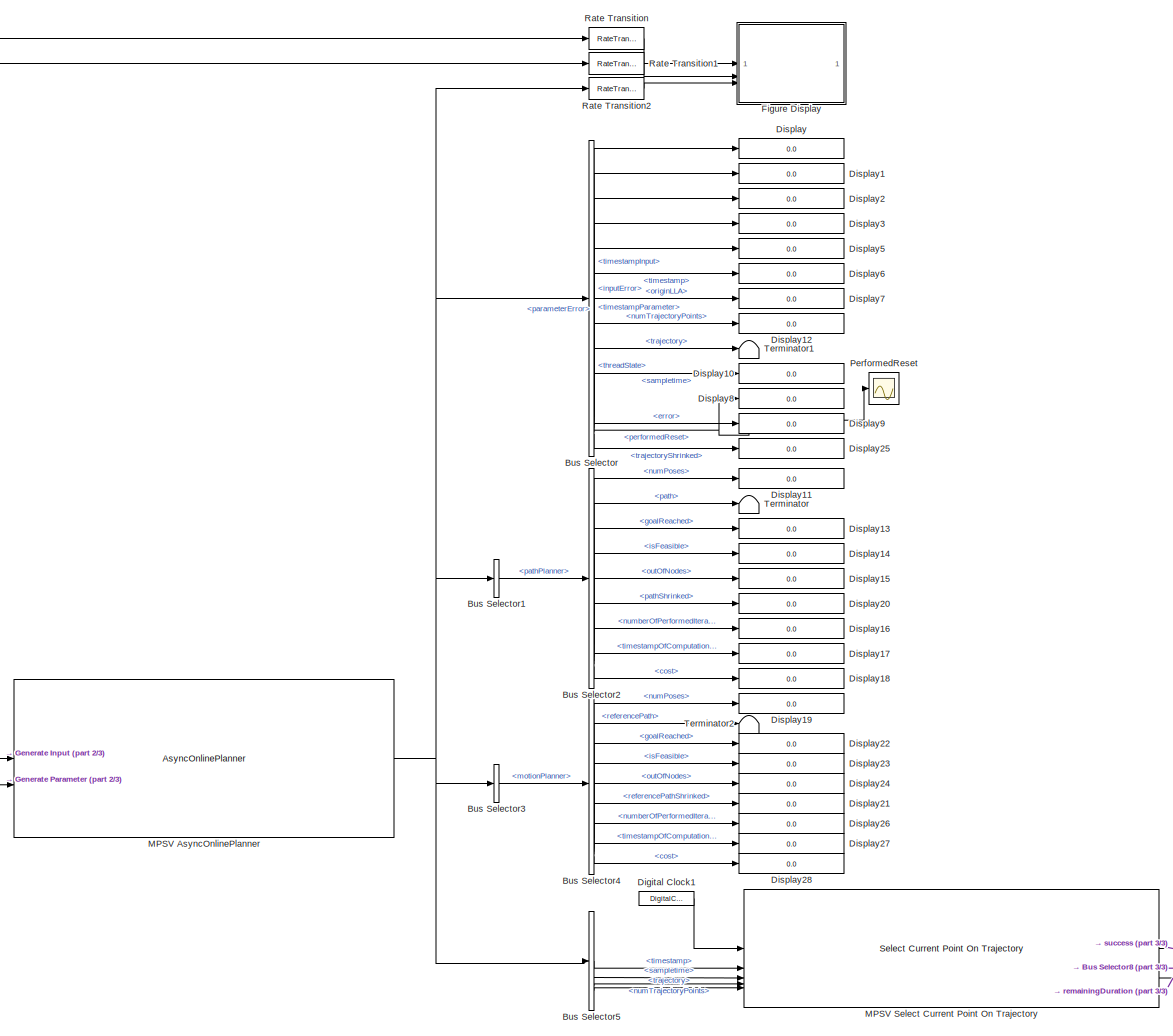
[diagram: root canvas - part 1/3, center side, full height]
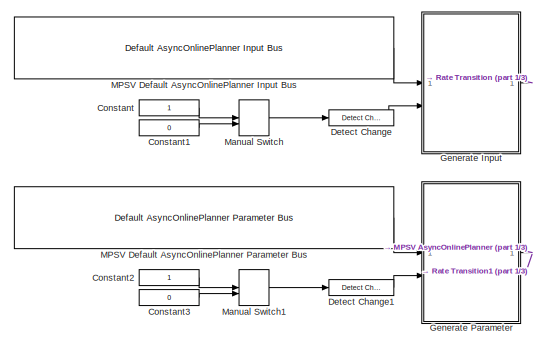
[diagram: root canvas - part 2/3, bottom left region]
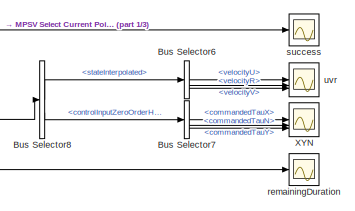
[diagram: root canvas - part 3/3, bottom right region]
MODEL slx_ed2f8e95f9f7
KIND model
CONFIG AbsTol = auto
CONFIG EnableMultiTasking = on
CONFIG FixedStep = 0.01
CONFIG MaxStep = auto
CONFIG MinStep = auto
CONFIG RelTol = 1e-3
CONFIG SampleTimeConstraint = Unconstrained
CONFIG SolverName = FixedStepAuto
CONFIG StartTime = 0.0
CONFIG StopTime = inf
BLOCK [BusSelector] Bus Selector
  OutputSignals = timestampInput,timestampParameter,inputError,parameterError,threadState,timestamp,originLLA,numTrajectoryPoints,trajectory,sampletime,performedReset,error,trajectoryShrinked
BLOCK [BusSelector] Bus Selector1
  OutputSignals = pathPlanner
BLOCK [BusSelector] Bus Selector2
  OutputSignals = numPoses,path,goalReached,isFeasible,outOfNodes,pathShrinked,numberOfPerformedIterations,timestampOfComputationUTC,cost
BLOCK [BusSelector] Bus Selector3
  OutputSignals = motionPlanner
BLOCK [BusSelector] Bus Selector4
  OutputSignals = numPoses,referencePath,goalReached,isFeasible,outOfNodes,referencePathShrinked,numberOfPerformedIterations,timestampOfComputationUTC,cost
BLOCK [BusSelector] Bus Selector5
  OutputSignals = timestamp,sampletime,numTrajectoryPoints,trajectory
BLOCK [BusSelector] Bus Selector6
  OutputSignals = velocityU,velocityV,velocityR
BLOCK [BusSelector] Bus Selector7
  OutputSignals = commandedTauX,commandedTauY,commandedTauN
BLOCK [BusSelector] Bus Selector8
  OutputSignals = stateInterpolated,controlInputZeroOrderHold
BLOCK [Constant] Constant
  OutDataTypeStr = uint8
BLOCK [Constant] Constant1
  OutDataTypeStr = uint8
  Value = 0
BLOCK [Constant] Constant2
  OutDataTypeStr = uint8
BLOCK [Constant] Constant3
  OutDataTypeStr = uint8
  Value = 0
BLOCK [Reference] Detect Change  REF=simulink/Logic and Bit
Operations/Detect
Change
  SourceBlock = simulink/Logic and Bit\nOperations/Detect\nChange
  SourceType = Detect Change
BLOCK [Reference] Detect Change1  REF=simulink/Logic and Bit
Operations/Detect
Change
  SourceBlock = simulink/Logic and Bit\nOperations/Detect\nChange
  SourceType = Detect Change
BLOCK [DigitalClock] Digital Clock1
  SampleTime = 0.01
BLOCK [Display] Display
  Decimation = 1
  Format = long
BLOCK [Display] Display1
  Decimation = 1
  Format = long
BLOCK [Display] Display10
  Decimation = 1
  Format = long
BLOCK [Display] Display11
  Decimation = 1
  Format = long
BLOCK [Display] Display12
  Decimation = 1
  Format = long
BLOCK [Display] Display13
  Decimation = 1
  Format = long
BLOCK [Display] Display14
  Decimation = 1
  Format = long
BLOCK [Display] Display15
  Decimation = 1
  Format = long
BLOCK [Display] Display16
  Decimation = 1
  Format = long
BLOCK [Display] Display17
  Decimation = 1
  Format = long
BLOCK [Display] Display18
  Decimation = 1
  Format = long
BLOCK [Display] Display19
  Decimation = 1
  Format = long
BLOCK [Display] Display2
  Decimation = 1
  Format = long
BLOCK [Display] Display20
  Decimation = 1
  Format = long
BLOCK [Display] Display21
  Decimation = 1
  Format = long
BLOCK [Display] Display22
  Decimation = 1
  Format = long
BLOCK [Display] Display23
  Decimation = 1
  Format = long
BLOCK [Display] Display24
  Decimation = 1
  Format = long
BLOCK [Display] Display25
  Decimation = 1
  Format = long
BLOCK [Display] Display26
  Decimation = 1
  Format = long
BLOCK [Display] Display27
  Decimation = 1
  Format = long
BLOCK [Display] Display28
  Decimation = 1
  Format = long
BLOCK [Display] Display3
  Decimation = 1
  Format = long
BLOCK [Display] Display5
  Decimation = 1
  Format = long
BLOCK [Display] Display6
  Decimation = 1
  Format = long
BLOCK [Display] Display7
  Decimation = 1
  Format = long
BLOCK [Display] Display8
  Decimation = 1
  Format = long
BLOCK [Display] Display9
  Decimation = 1
  Format = long
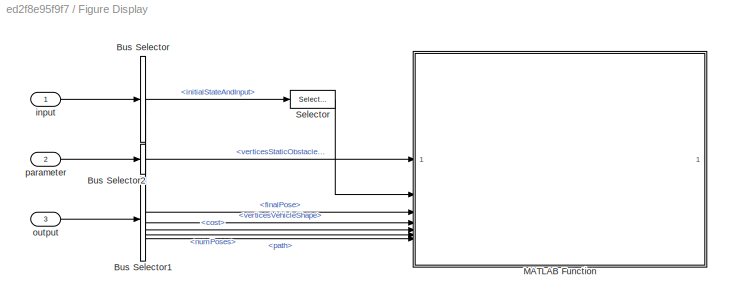
BLOCK [SubSystem] Figure Display
BLOCK [BusSelector] Figure Display/Bus Selector
  OutputSignals = verticesStaticObstacles,initialStateAndInput,finalPose
BLOCK [BusSelector] Figure Display/Bus Selector1
  OutputSignals = pathPlanner.cost,pathPlanner.numPoses,pathPlanner.path
BLOCK [BusSelector] Figure Display/Bus Selector2
  OutputSignals = sequentialPlanner.geometry.verticesVehicleShape
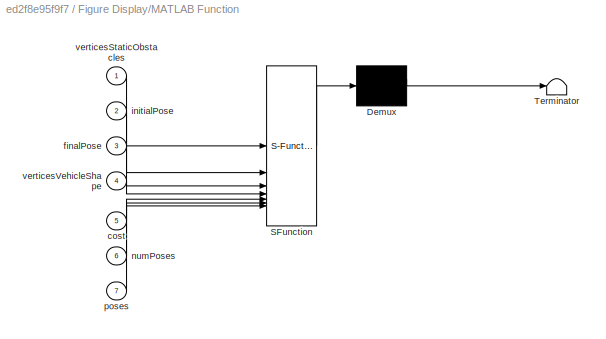
BLOCK [SubSystem] Figure Display/MATLAB Function
  ErrorFcn = Stateflow.Translate.translate
  LibrarySourceBlock = simulink/User-Defined\nFunctions/MATLAB Function
  PermitHierarchicalResolution = ExplicitOnly
  SFBlockType = MATLAB Function
  TreatAsAtomicUnit = on
BLOCK [Demux] Figure Display/MATLAB Function/ Demux 
  Outputs = 1
BLOCK [S-Function] Figure Display/MATLAB Function/ SFunction 
  EnableBusSupport = off
  FunctionName = sf_sfun
  PortCounts = [7 1]
  SFcnIsStateOwnerBlock = off
  SFunctionDeploymentMode = off
  Tag = Stateflow S-Function 2
BLOCK [Terminator] Figure Display/MATLAB Function/ Terminator 
BLOCK [Inport] Figure Display/MATLAB Function/cost
  Port = 5
BLOCK [Inport] Figure Display/MATLAB Function/finalPose
  Port = 3
BLOCK [Inport] Figure Display/MATLAB Function/initialPose
  Port = 2
BLOCK [Inport] Figure Display/MATLAB Function/numPoses
  Port = 6
BLOCK [Inport] Figure Display/MATLAB Function/poses
  Port = 7
BLOCK [Inport] Figure Display/MATLAB Function/verticesStaticObstacles
BLOCK [Inport] Figure Display/MATLAB Function/verticesVehicleShape
  Port = 4
BLOCK [Selector] Figure Display/Selector
  IndexOptions = Index vector (dialog)
  Indices = 1:3
  InputPortWidth = 12
  OutputSizes = 1
BLOCK [Inport] Figure Display/input
BLOCK [Inport] Figure Display/output
  Port = 3
BLOCK [Inport] Figure Display/parameter
  Port = 2
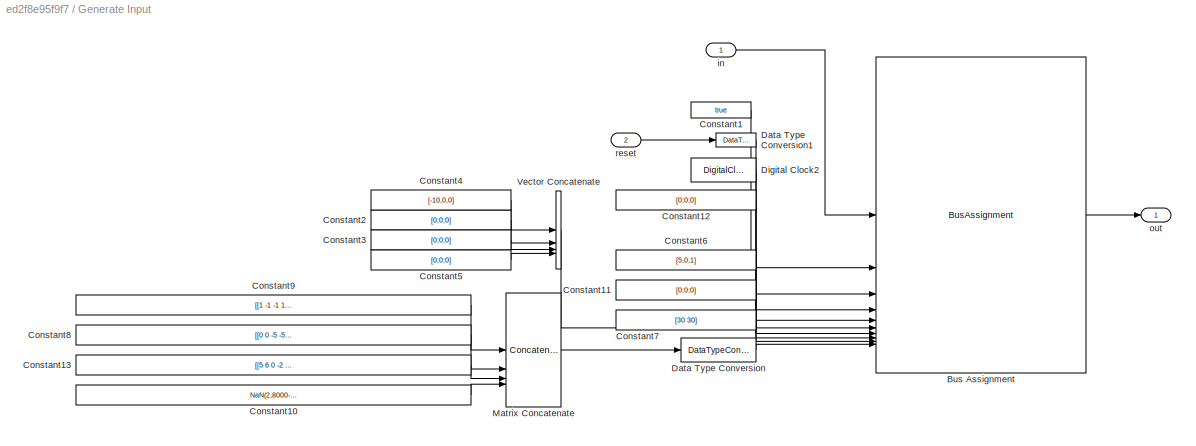
BLOCK [SubSystem] Generate Input
BLOCK [BusAssignment] Generate Input/Bus Assignment
  AssignedSignals = enable,reset,timestamp,originLLA,initialStateAndInput,finalPose,samplingBoxCenterPose,samplingBoxDimension,verticesStaticObstacles
BLOCK [Constant] Generate Input/Constant1
  OutDataTypeStr = boolean
  Value = true
BLOCK [Constant] Generate Input/Constant10
  Value = NaN(2,8000-5-5-6)
BLOCK [Constant] Generate Input/Constant11
  Value = [0;0;0]
BLOCK [Constant] Generate Input/Constant12
  Value = [0;0;0]
BLOCK [Constant] Generate Input/Constant13
  Value = [[5 6 0 -2 -1; 6 15 16 10 7], NaN(2,1)]
BLOCK [Constant] Generate Input/Constant2
  Value = [0;0;0]
BLOCK [Constant] Generate Input/Constant3
  Value = [0;0;0]
BLOCK [Constant] Generate Input/Constant4
  Value = [-10,0,0]
BLOCK [Constant] Generate Input/Constant5
  Value = [0;0;0]
BLOCK [Constant] Generate Input/Constant6
  Value = [5,0,1]
BLOCK [Constant] Generate Input/Constant7
  Value = [30 30]
BLOCK [Constant] Generate Input/Constant8
  Value = [[0 0 -5 -5; -20 -9 -7 -20], NaN(2,1)]
BLOCK [Constant] Generate Input/Constant9
  Value = [[1 -1 -1 1; 1 1 -1 -1], NaN(2,1)]
BLOCK [DataTypeConversion] Generate Input/Data Type Conversion
  OutDataTypeStr = single
  RndMeth = Floor
  SaturateOnIntegerOverflow = off
BLOCK [DataTypeConversion] Generate Input/Data Type Conversion1
  OutDataTypeStr = boolean
  RndMeth = Floor
  SaturateOnIntegerOverflow = off
BLOCK [DigitalClock] Generate Input/Digital Clock2
  SampleTime = 0.01
BLOCK [Concatenate] Generate Input/Matrix Concatenate
  ConcatenateDimension = 2
  Mode = Multidimensional array
  NumInputs = 4
BLOCK [Concatenate] Generate Input/Vector Concatenate
  NumInputs = 4
BLOCK [Inport] Generate Input/in
BLOCK [Outport] Generate Input/out
BLOCK [Inport] Generate Input/reset
  Port = 2
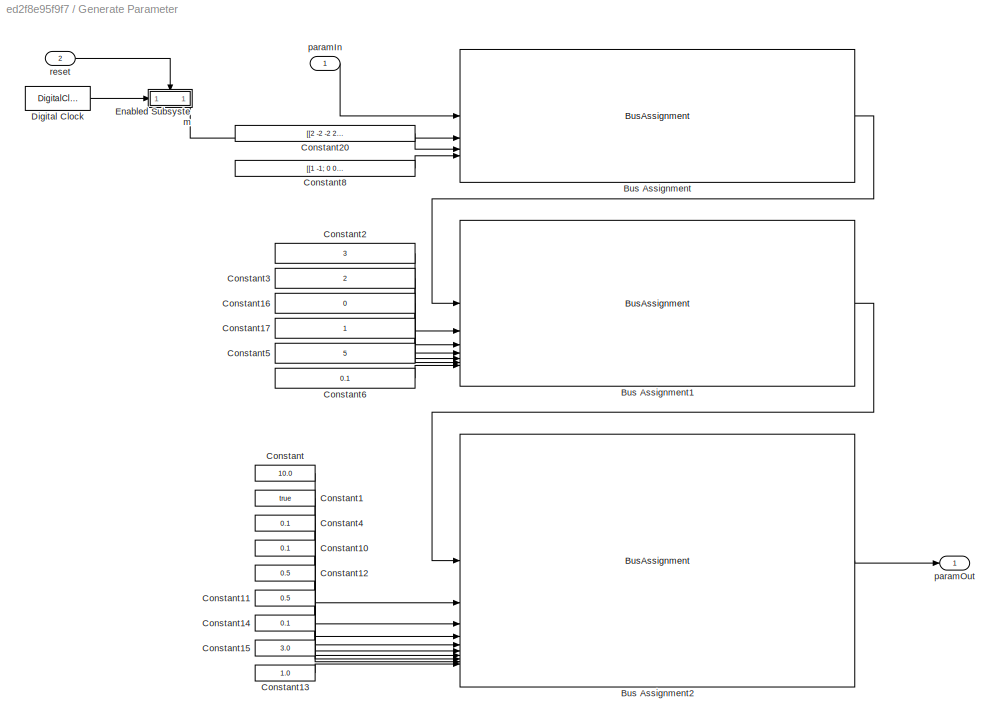
BLOCK [SubSystem] Generate Parameter
BLOCK [BusAssignment] Generate Parameter/Bus Assignment
  AssignedSignals = timestamp,sequentialPlanner.geometry.verticesVehicleShape,sequentialPlanner.geometry.skeletalPoints
BLOCK [BusAssignment] Generate Parameter/Bus Assignment1
  AssignedSignals = sequentialPlanner.metric.weightPsi,sequentialPlanner.metric.weightSway,sequentialPlanner.metric.weightReverseScale,sequentialPlanner.metric.weightReverseDecay,sequentialPlanner.costMap.distanceScale,sequentialPlanner.costMap.distanceDecay
BLOCK [BusAssignment] Generate Parameter/Bus Assignment2
  AssignedSignals = timeoutInput,onlinePlanner.predictInitialStateOnReset,onlinePlanner.maxComputationTimePathOnReset,onlinePlanner.maxComputationTimeMotionOnReset,onlinePlanner.maxComputationTimePath,onlinePlanner.maxComputationTimeMotion,onlinePlanner.additionalAheadPlanningTime,onlinePlanner.additionalTrajectoryDuration,onlinePlanner.timeKeepPastTrajectory
BLOCK [Constant] Generate Parameter/Constant
  OutDataTypeStr = double
  Value = 10.0
BLOCK [Constant] Generate Parameter/Constant1
  OutDataTypeStr = boolean
  Value = true
BLOCK [Constant] Generate Parameter/Constant10
  OutDataTypeStr = double
  Value = 0.1
BLOCK [Constant] Generate Parameter/Constant11
  OutDataTypeStr = double
  Value = 0.5
BLOCK [Constant] Generate Parameter/Constant12
  OutDataTypeStr = double
  Value = 0.5
BLOCK [Constant] Generate Parameter/Constant13
  OutDataTypeStr = double
  Value = 1.0
BLOCK [Constant] Generate Parameter/Constant14
  OutDataTypeStr = double
  Value = 0.1
BLOCK [Constant] Generate Parameter/Constant15
  OutDataTypeStr = double
  Value = 3.0
BLOCK [Constant] Generate Parameter/Constant16
  Value = 0
BLOCK [Constant] Generate Parameter/Constant17
BLOCK [Constant] Generate Parameter/Constant2
  Value = 3
BLOCK [Constant] Generate Parameter/Constant20
  OutDataTypeStr = single
  Value = [[2 -2 -2 2; 1 1 -1 -1], NaN(2,96)]
BLOCK [Constant] Generate Parameter/Constant3
  Value = 2
BLOCK [Constant] Generate Parameter/Constant4
  OutDataTypeStr = double
  Value = 0.1
BLOCK [Constant] Generate Parameter/Constant5
  Value = 5
BLOCK [Constant] Generate Parameter/Constant6
  Value = 0.1
BLOCK [Constant] Generate Parameter/Constant8
  OutDataTypeStr = single
  Value = [[1 -1; 0 0], NaN(2,8)]
BLOCK [DigitalClock] Generate Parameter/Digital Clock
  SampleTime = 0.01
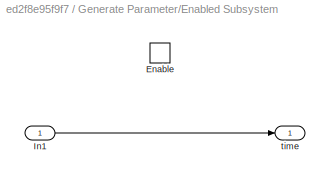
BLOCK [SubSystem] Generate Parameter/Enabled Subsystem
  TreatAsAtomicUnit = on
BLOCK [EnablePort] Generate Parameter/Enabled Subsystem/Enable
BLOCK [Inport] Generate Parameter/Enabled Subsystem/In1
BLOCK [Outport] Generate Parameter/Enabled Subsystem/time
BLOCK [Inport] Generate Parameter/paramIn
BLOCK [Outport] Generate Parameter/paramOut
BLOCK [Inport] Generate Parameter/reset
  Port = 2
BLOCK [Reference] MPSV AsyncOnlinePlanner  REF=MPSV/AsyncOnlinePlanner
  SourceBlock = MPSV/AsyncOnlinePlanner
  SourceProductName = MPSV - Motion Planner for Surface Vehicles
BLOCK [Reference] MPSV Default AsyncOnlinePlanner Input Bus  REF=MPSV/Default AsyncOnlinePlanner Input Bus
  SourceBlock = MPSV/Default AsyncOnlinePlanner Input Bus
  SourceProductName = MPSV - Motion Planner for Surface Vehicles
BLOCK [Reference] MPSV Default AsyncOnlinePlanner Parameter Bus  REF=MPSV/Default AsyncOnlinePlanner Parameter Bus
  SourceBlock = MPSV/Default AsyncOnlinePlanner Parameter Bus
  SourceProductName = MPSV - Motion Planner for Surface Vehicles
BLOCK [Reference] MPSV Select Current Point On Trajectory  REF=MPSV/Select Current Point On Trajectory
  SourceBlock = MPSV/Select Current Point On Trajectory
  SourceProductName = MPSV - Motion Planner for Surface Vehicles
BLOCK [ManualSwitch] Manual Switch
  CurrentSetting = 0
BLOCK [ManualSwitch] Manual Switch1
  CurrentSetting = 0
BLOCK [Scope] PerformedReset
  ActiveDisplayYMaximum = 1.125
  ActiveDisplayYMinimum = -0.125
  DataLoggingVariableName = ScopeData1
  Floating = off
  GraphicalSettings = {"GraphicalSettings":{"LegacySettings":true,"Style":{"Style":{"AxesColor":"[0 0 0]","ChannelNames":[""],"ColorOrder":"[1 1 0.0666666666666667;0.0745098039215686 0.623529411764706 1;1 0.411764705882353 0.16078431372549;0.392156862745098 0.831372549019608 0.0745098039215686;0.717647058823529 0.274509803921569 1;0.0588235294117647 1 1;1 0.0745098039215686 0.650980392156863]","CurrentConfiguration":"e...<+413ch>
  MultipleDisplayCache = [{"MaxYLimMag":1.125,"MaxYLimReal":1.125,"MinYLimMag":0,"MinYLimReal":-0.125,"PlotAsMagnitudePhase":false,"ShowGrid":true,"ShowLegend":false,"Title":"%<SignalLabel>","YLabel":""}]
  NumInputPorts = 1
  WasSavedAsWebScope = on
BLOCK [RateTransition] Rate Transition
  Deterministic = off
  OutPortSampleTime = 1
BLOCK [RateTransition] Rate Transition1
  Deterministic = off
  OutPortSampleTime = 1
BLOCK [RateTransition] Rate Transition2
  Deterministic = off
  OutPortSampleTime = 1
BLOCK [Terminator] Terminator
BLOCK [Terminator] Terminator1
BLOCK [Terminator] Terminator2
BLOCK [Scope] XYN
  ActiveDisplayYMaximum = 735.84406
  ActiveDisplayYMinimum = -501.70849
  DataLoggingVariableName = ScopeData1
  Floating = off
  GraphicalSettings = {"GraphicalSettings":{"LegacySettings":true,"Style":{"AxesScalingProperties":{"ScaleAxesLimitsAtStop":false},"Style":{"AxesColor":"[0 0 0]","ChannelNames":[""],"ColorOrder":"[1 0.909803921568627 0.392156862745098;0.149019607843137 0.549019607843137 0.866666666666667;0.96078431372549 0.466666666666667 0.16078431372549;0.286274509803922 0.858823529411765 0.250980392156863;0.752941176470588 0.3607843...<+590ch>
  MultipleDisplayCache = [{"MaxYLimMag":735.84406,"MaxYLimReal":735.84406,"MinYLimMag":0,"MinYLimReal":-501.70849,"PlotAsMagnitudePhase":false,"ShowGrid":true,"ShowLegend":false,"Title":"%<SignalLabel>","YLabel":""}]
  NumInputPorts = 3
  WasSavedAsWebScope = on
BLOCK [Scope] remainingDuration
  ActiveDisplayYMaximum = 26.9325
  ActiveDisplayYMinimum = -2.9925
  DataLoggingVariableName = ScopeData1
  Floating = off
  GraphicalSettings = {"GraphicalSettings":{"LegacySettings":true,"Style":{"AxesScalingProperties":{"ScaleAxesLimitsAtStop":false},"Style":{"AxesColor":"[0 0 0]","ChannelNames":[""],"ColorOrder":"[1 1 0.0666666666666667;0.0745098039215686 0.623529411764706 1;1 0.411764705882353 0.16078431372549;0.392156862745098 0.831372549019608 0.0745098039215686;0.717647058823529 0.274509803921569 1;0.0588235294117647 1 1;1 0.074509...<+469ch>
  MultipleDisplayCache = [{"MaxYLimMag":26.9325,"MaxYLimReal":26.9325,"MinYLimMag":0,"MinYLimReal":-2.9925,"PlotAsMagnitudePhase":false,"ShowGrid":true,"ShowLegend":false,"Title":"%<SignalLabel>","YLabel":""}]
  NumInputPorts = 1
  WasSavedAsWebScope = on
BLOCK [Scope] success
  ActiveDisplayYMaximum = 1.125
  ActiveDisplayYMinimum = -0.125
  Floating = off
  GraphicalSettings = {"GraphicalSettings":{"LegacySettings":true,"Style":{"AxesScalingProperties":{"ScaleAxesLimitsAtStop":false},"Style":{"AxesColor":"[0 0 0]","ChannelNames":[""],"ColorOrder":"[1 1 0.0666666666666667;0.0745098039215686 0.623529411764706 1;1 0.411764705882353 0.16078431372549;0.392156862745098 0.831372549019608 0.0745098039215686;0.717647058823529 0.274509803921569 1;0.0588235294117647 1 1;1 0.074509...<+469ch>
  MultipleDisplayCache = [{"MaxYLimMag":1.125,"MaxYLimReal":1.125,"MinYLimMag":0,"MinYLimReal":-0.125,"PlotAsMagnitudePhase":false,"ShowGrid":true,"ShowLegend":false,"Title":"%<SignalLabel>","YLabel":""}]
  NumInputPorts = 1
  WasSavedAsWebScope = on
BLOCK [Scope] uvr
  ActiveDisplayYMaximum = 0.74355
  ActiveDisplayYMinimum = -0.33623
  DataLoggingVariableName = ScopeData2
  Floating = off
  GraphicalSettings = {"GraphicalSettings":{"LegacySettings":true,"Style":{"AxesScalingProperties":{"ScaleAxesLimitsAtStop":false},"Style":{"AxesColor":"[0 0 0]","ChannelNames":[""],"ColorOrder":"[1 1 0.0666666666666667;0.0745098039215686 0.623529411764706 1;1 0.411764705882353 0.16078431372549;0.392156862745098 0.831372549019608 0.0745098039215686;0.717647058823529 0.274509803921569 1;0.0588235294117647 1 1;1 0.074509...<+513ch>
  MultipleDisplayCache = [{"MaxYLimMag":0.74355,"MaxYLimReal":0.74355,"MinYLimMag":0,"MinYLimReal":-0.33623,"PlotAsMagnitudePhase":false,"ShowGrid":true,"ShowLegend":false,"Title":"%<SignalLabel>","YLabel":""}]
  NumInputPorts = 3
  WasSavedAsWebScope = on
LINE Bus Selector1:1 -> Bus Selector2:1
LINE Bus Selector2:1 -> Display11:1
LINE Bus Selector2:2 -> Terminator:1
LINE Bus Selector2:3 -> Display13:1
LINE Bus Selector2:4 -> Display14:1
LINE Bus Selector2:5 -> Display15:1
LINE Bus Selector2:6 -> Display20:1
LINE Bus Selector2:7 -> Display16:1
LINE Bus Selector2:8 -> Display17:1
LINE Bus Selector2:9 -> Display18:1
LINE Bus Selector3:1 -> Bus Selector4:1
LINE Bus Selector4:1 -> Display19:1
LINE Bus Selector4:2 -> Terminator2:1
LINE Bus Selector4:3 -> Display22:1
LINE Bus Selector4:4 -> Display23:1
LINE Bus Selector4:5 -> Display24:1
LINE Bus Selector4:6 -> Display21:1
LINE Bus Selector4:7 -> Display26:1
LINE Bus Selector4:8 -> Display27:1
LINE Bus Selector4:9 -> Display28:1
LINE Bus Selector5:1 -> MPSV Select Current Point On Trajectory:2
LINE Bus Selector5:2 -> MPSV Select Current Point On Trajectory:3
LINE Bus Selector5:3 -> MPSV Select Current Point On Trajectory:4
LINE Bus Selector5:4 -> MPSV Select Current Point On Trajectory:5
LINE Bus Selector6:1 -> uvr:1
LINE Bus Selector6:2 -> uvr:2
LINE Bus Selector6:3 -> uvr:3
LINE Bus Selector7:1 -> XYN:1
LINE Bus Selector7:2 -> XYN:2
LINE Bus Selector7:3 -> XYN:3
LINE Bus Selector8:1 -> Bus Selector6:1
LINE Bus Selector8:2 -> Bus Selector7:1
LINE Bus Selector:1 -> Display:1
LINE Bus Selector:10 -> Display10:1
NET Bus Selector:11 -> Display8:1, PerformedReset:1
LINE Bus Selector:12 -> Display9:1
LINE Bus Selector:13 -> Display25:1
LINE Bus Selector:2 -> Display1:1
LINE Bus Selector:3 -> Display2:1
LINE Bus Selector:4 -> Display3:1
LINE Bus Selector:5 -> Display5:1
LINE Bus Selector:6 -> Display6:1
LINE Bus Selector:7 -> Display7:1
LINE Bus Selector:8 -> Display12:1
LINE Bus Selector:9 -> Terminator1:1
LINE Constant1:1 -> Manual Switch:2
LINE Constant2:1 -> Manual Switch1:1
LINE Constant3:1 -> Manual Switch1:2
LINE Constant:1 -> Manual Switch:1
LINE Detect Change1:1 -> Generate Parameter:2
LINE Detect Change:1 -> Generate Input:2
LINE Digital Clock1:1 -> MPSV Select Current Point On Trajectory:1
LINE Figure Display/Bus Selector1:1 -> Figure Display/MATLAB Function:5
LINE Figure Display/Bus Selector1:2 -> Figure Display/MATLAB Function:6
LINE Figure Display/Bus Selector1:3 -> Figure Display/MATLAB Function:7
LINE Figure Display/Bus Selector2:1 -> Figure Display/MATLAB Function:4
LINE Figure Display/Bus Selector:1 -> Figure Display/MATLAB Function:1
LINE Figure Display/Bus Selector:2 -> Figure Display/Selector:1
LINE Figure Display/Bus Selector:3 -> Figure Display/MATLAB Function:3
LINE Figure Display/Selector:1 -> Figure Display/MATLAB Function:2
LINE Figure Display/input:1 -> Figure Display/Bus Selector:1
LINE Figure Display/output:1 -> Figure Display/Bus Selector1:1
LINE Figure Display/parameter:1 -> Figure Display/Bus Selector2:1
LINE Generate Input/Bus Assignment:1 -> Generate Input/out:1
LINE Generate Input/Constant10:1 -> Generate Input/Matrix Concatenate:4
LINE Generate Input/Constant11:1 -> Generate Input/Bus Assignment:8
LINE Generate Input/Constant12:1 -> Generate Input/Bus Assignment:5
LINE Generate Input/Constant13:1 -> Generate Input/Matrix Concatenate:3
LINE Generate Input/Constant1:1 -> Generate Input/Bus Assignment:2
LINE Generate Input/Constant2:1 -> Generate Input/Vector Concatenate:2
LINE Generate Input/Constant3:1 -> Generate Input/Vector Concatenate:3
LINE Generate Input/Constant4:1 -> Generate Input/Vector Concatenate:1
LINE Generate Input/Constant5:1 -> Generate Input/Vector Concatenate:4
LINE Generate Input/Constant6:1 -> Generate Input/Bus Assignment:7
LINE Generate Input/Constant7:1 -> Generate Input/Bus Assignment:9
LINE Generate Input/Constant8:1 -> Generate Input/Matrix Concatenate:2
LINE Generate Input/Constant9:1 -> Generate Input/Matrix Concatenate:1
LINE Generate Input/Data Type Conversion1:1 -> Generate Input/Bus Assignment:3
LINE Generate Input/Data Type Conversion:1 -> Generate Input/Bus Assignment:10
LINE Generate Input/Digital Clock2:1 -> Generate Input/Bus Assignment:4
LINE Generate Input/Matrix Concatenate:1 -> Generate Input/Data Type Conversion:1
LINE Generate Input/Vector Concatenate:1 -> Generate Input/Bus Assignment:6
LINE Generate Input/in:1 -> Generate Input/Bus Assignment:1
LINE Generate Input/reset:1 -> Generate Input/Data Type Conversion1:1
NET Generate Input:1 -> MPSV AsyncOnlinePlanner:1, Rate Transition:1
LINE Generate Parameter/Bus Assignment1:1 -> Generate Parameter/Bus Assignment2:1
LINE Generate Parameter/Bus Assignment2:1 -> Generate Parameter/paramOut:1
LINE Generate Parameter/Bus Assignment:1 -> Generate Parameter/Bus Assignment1:1
LINE Generate Parameter/Constant10:1 -> Generate Parameter/Bus Assignment2:5
LINE Generate Parameter/Constant11:1 -> Generate Parameter/Bus Assignment2:7
LINE Generate Parameter/Constant12:1 -> Generate Parameter/Bus Assignment2:6
LINE Generate Parameter/Constant13:1 -> Generate Parameter/Bus Assignment2:10
LINE Generate Parameter/Constant14:1 -> Generate Parameter/Bus Assignment2:8
LINE Generate Parameter/Constant15:1 -> Generate Parameter/Bus Assignment2:9
LINE Generate Parameter/Constant16:1 -> Generate Parameter/Bus Assignment1:4
LINE Generate Parameter/Constant17:1 -> Generate Parameter/Bus Assignment1:5
LINE Generate Parameter/Constant1:1 -> Generate Parameter/Bus Assignment2:3
LINE Generate Parameter/Constant20:1 -> Generate Parameter/Bus Assignment:3
LINE Generate Parameter/Constant2:1 -> Generate Parameter/Bus Assignment1:2
LINE Generate Parameter/Constant3:1 -> Generate Parameter/Bus Assignment1:3
LINE Generate Parameter/Constant4:1 -> Generate Parameter/Bus Assignment2:4
LINE Generate Parameter/Constant5:1 -> Generate Parameter/Bus Assignment1:6
LINE Generate Parameter/Constant6:1 -> Generate Parameter/Bus Assignment1:7
LINE Generate Parameter/Constant8:1 -> Generate Parameter/Bus Assignment:4
LINE Generate Parameter/Constant:1 -> Generate Parameter/Bus Assignment2:2
LINE Generate Parameter/Digital Clock:1 -> Generate Parameter/Enabled Subsystem:1
LINE Generate Parameter/Enabled Subsystem/In1:1 -> Generate Parameter/Enabled Subsystem/time:1
LINE Generate Parameter/Enabled Subsystem:1 -> Generate Parameter/Bus Assignment:2
LINE Generate Parameter/paramIn:1 -> Generate Parameter/Bus Assignment:1
LINE Generate Parameter/reset:1 -> Generate Parameter/Enabled Subsystem:enable
NET Generate Parameter:1 -> MPSV AsyncOnlinePlanner:2, Rate Transition1:1
NET MPSV AsyncOnlinePlanner:1 -> Bus Selector1:1, Bus Selector3:1, Bus Selector5:1, Bus Selector:1, Rate Transition2:1
LINE MPSV Default AsyncOnlinePlanner Input Bus:1 -> Generate Input:1
LINE MPSV Default AsyncOnlinePlanner Parameter Bus:1 -> Generate Parameter:1
LINE MPSV Select Current Point On Trajectory:1 -> success:1
LINE MPSV Select Current Point On Trajectory:2 -> Bus Selector8:1
LINE MPSV Select Current Point On Trajectory:3 -> remainingDuration:1
LINE Manual Switch1:1 -> Detect Change1:1
LINE Manual Switch:1 -> Detect Change:1
LINE Rate Transition1:1 -> Figure Display:2
LINE Rate Transition2:1 -> Figure Display:3
LINE Rate Transition:1 -> Figure Display:1
note: NET lines group one-source signal fan-out (src -> all destinations, sorted); 1:1 wires keep LINE
CHART Figure Display/MATLAB Function states=1 transitions=1
  STATE_LABEL 'eML_blk_kernel()'
  STATE_LABEL 'SCRIPT:\nfunction FigureDisplay(verticesStaticObstacles, initialPose, finalPose, verticesVehicleShape, cost, numPoses, poses)\n    persistent f;\n    if(isempty(f))\n        f = figure(42);\n    end\n\n    clf;\n    hold on;\n    PlotPath(numPoses, poses, verticesVehicleShape, [0 0.3 0.5]);\n    PlotVehicleShape(initialPose, verticesVehicleShape, [0.9 0 0]);\n    PlotVehicleShape(finalPose, verticesVehicleSh...<+1915ch>'
CHART  states=0 transitions=0
